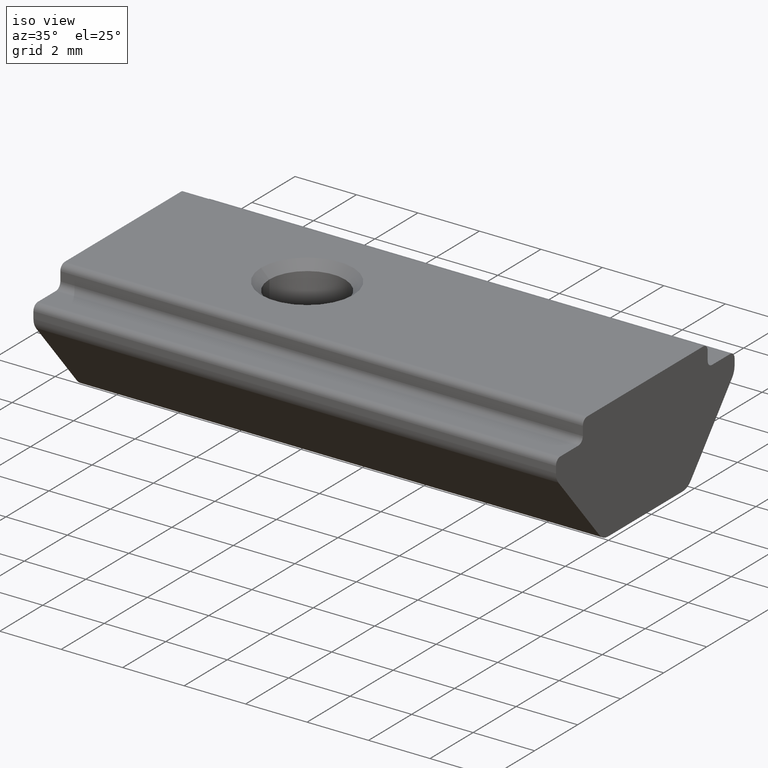
[diagram: clean part render]
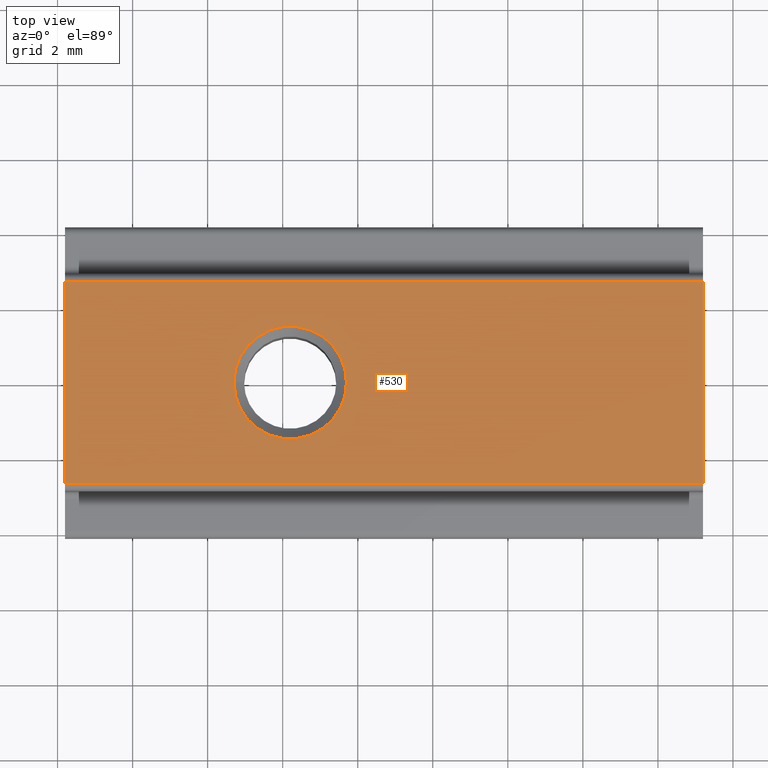
[diagram: tour spotlight — one face highlighted and labeled with its STEP entity id]
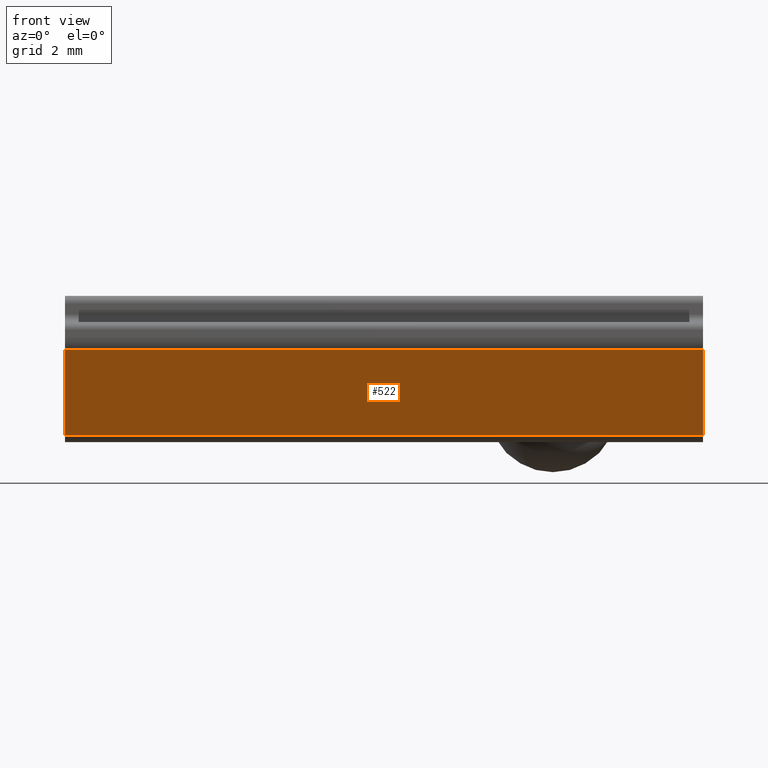
[diagram: tour spotlight — one face highlighted and labeled with its STEP entity id]
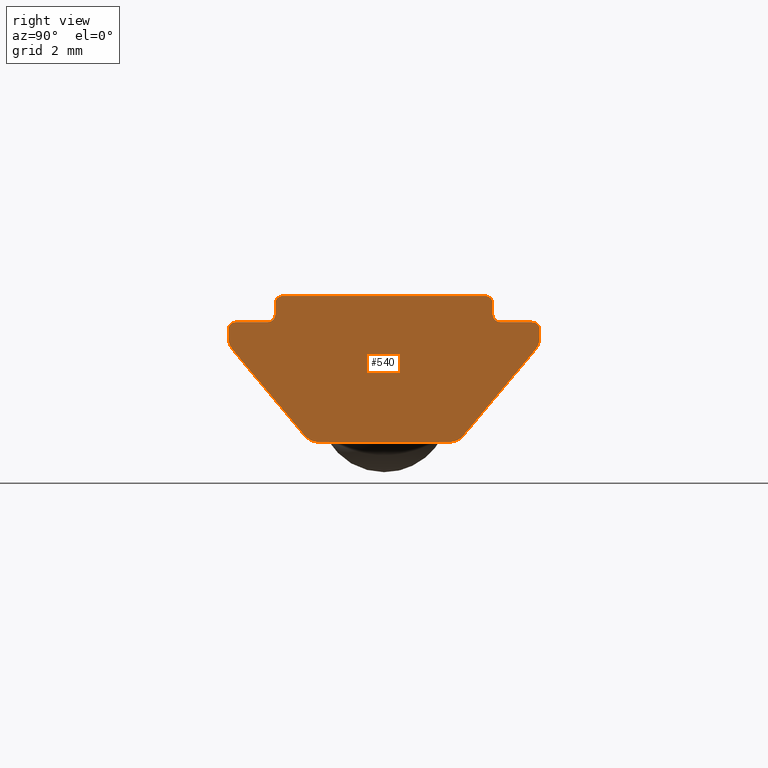
[diagram: tour spotlight — one face highlighted and labeled with its STEP entity id]
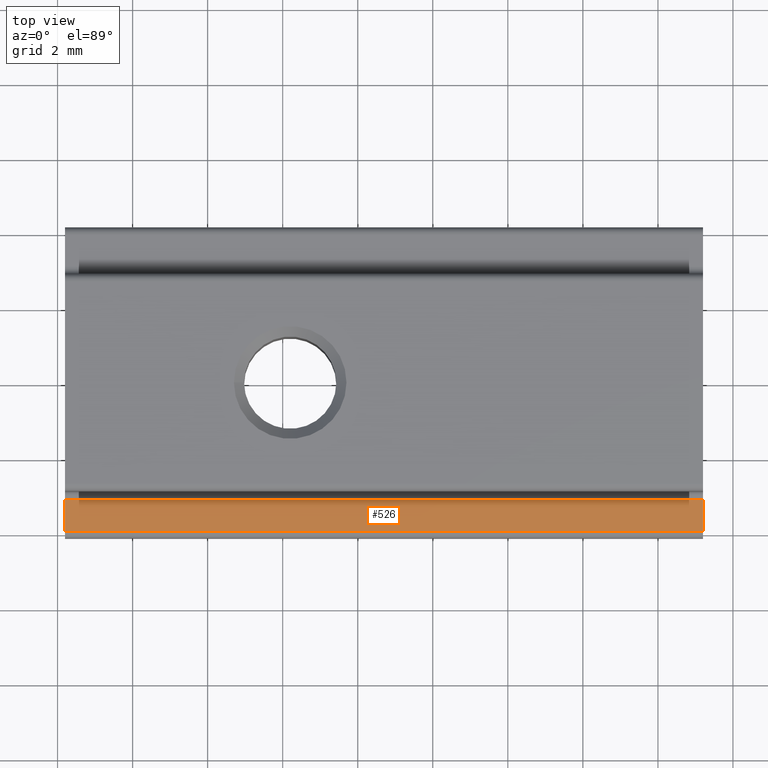
[diagram: tour spotlight — one face highlighted and labeled with its STEP entity id]
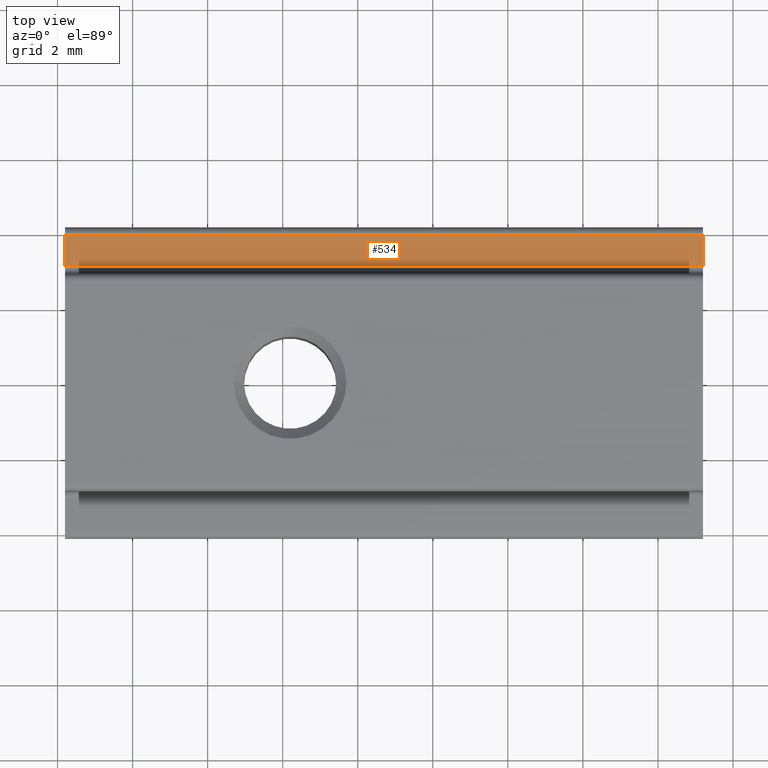
[diagram: tour spotlight — one face highlighted and labeled with its STEP entity id]
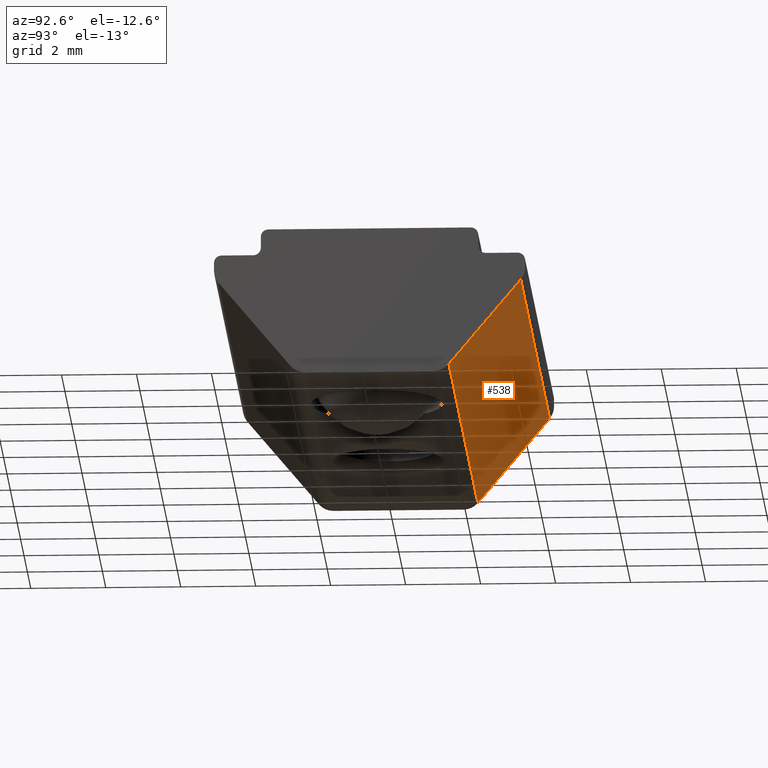
[diagram: tour spotlight — one face highlighted and labeled with its STEP entity id]
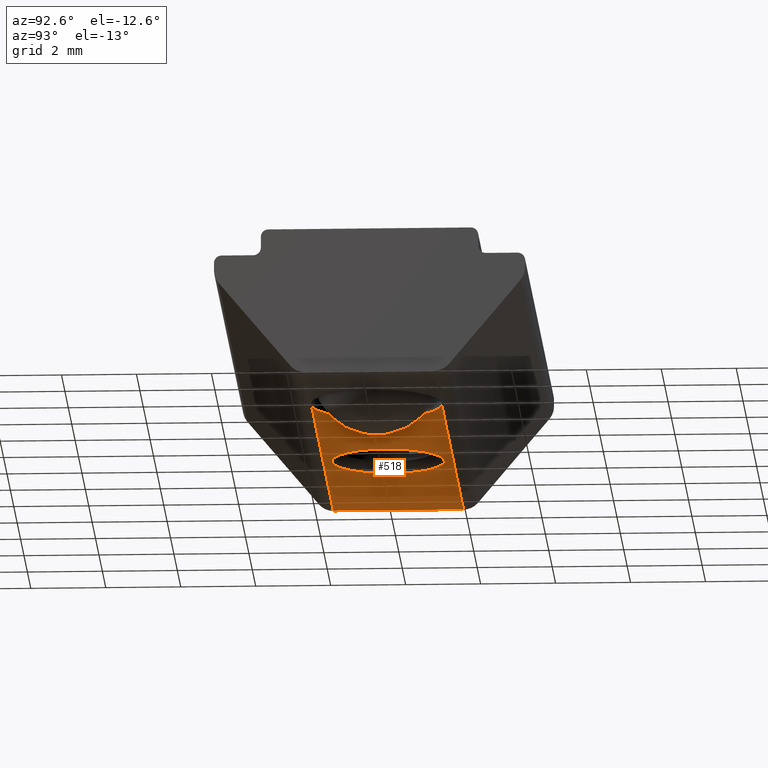
[diagram: tour spotlight — one face highlighted and labeled with its STEP entity id]
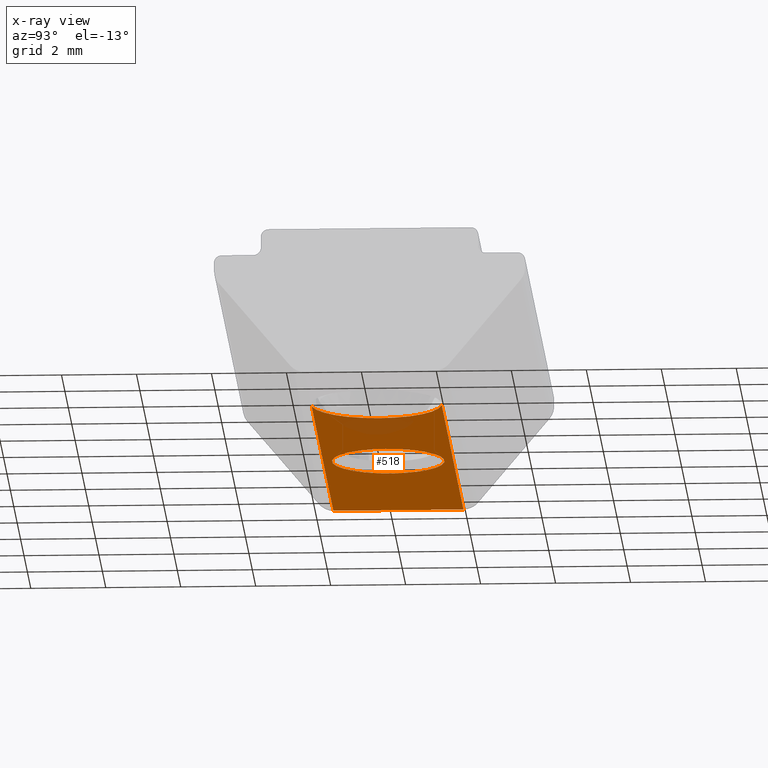
[diagram: x-ray of the same camera — body ghosted, this tour face saturated]
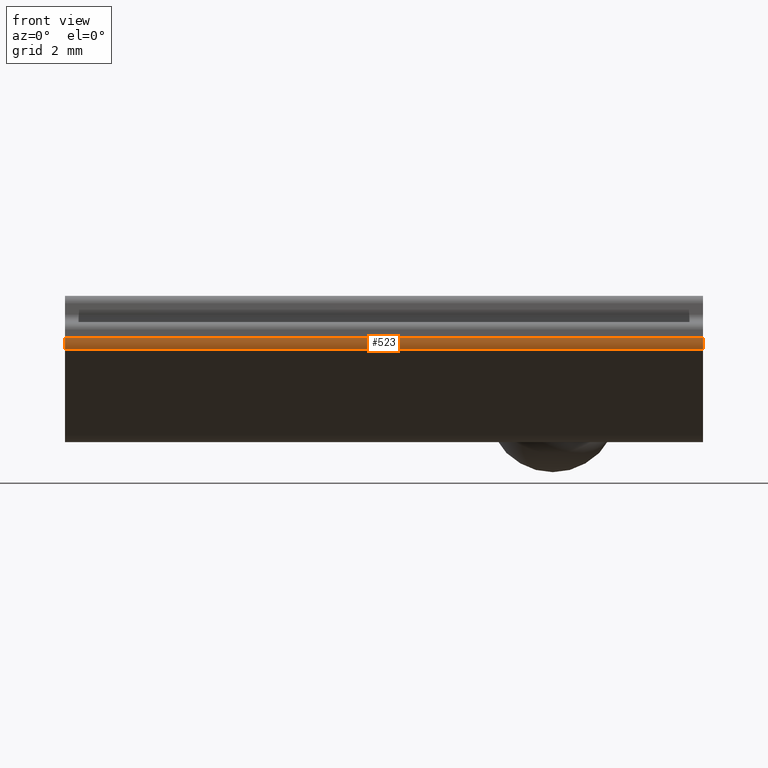
[diagram: tour spotlight — one face highlighted and labeled with its STEP entity id]
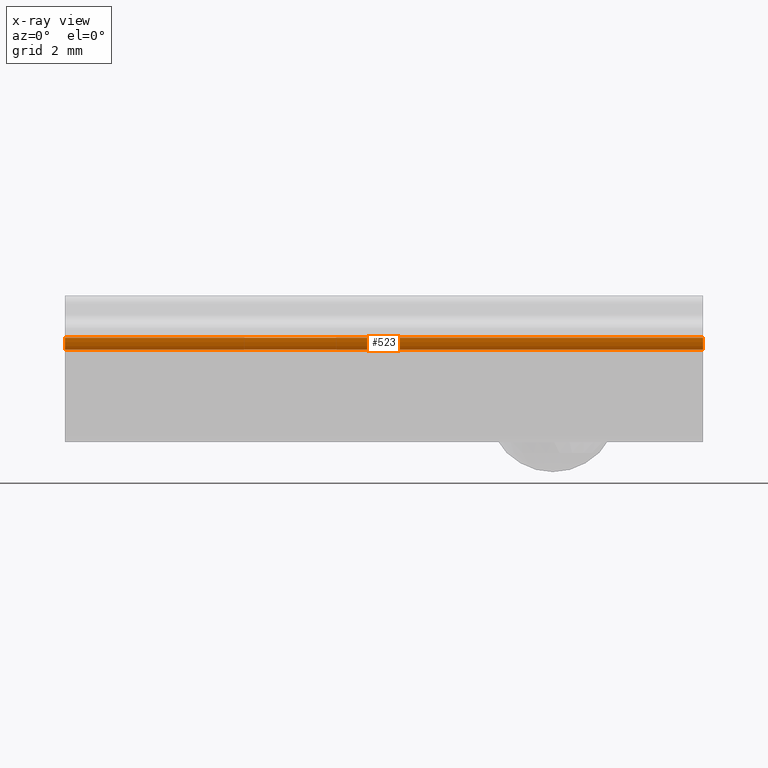
[diagram: x-ray of the same camera — body ghosted, this tour face saturated]
A machine part: a face-by-face anatomy tour. The part has 28 B-rep faces; the first image is the clean iso view, then the 8 largest visible faces are spotlighted one at a time (largest first), each with its STEP entity span.

Face 1 — top view, entity #530. In plain terms, the highlighted planar face has unit normal (0, 0, -1).
Definition (entity closure, byte-faithful):
#33=FACE_BOUND('',#76,.T.);
#46=FACE_OUTER_BOUND('',#75,.T.);
#75=EDGE_LOOP('',(#401,#402,#403,#404));
#76=EDGE_LOOP('',(#405));
#115=LINE('',#879,#161);
#116=LINE('',#883,#162);
#117=LINE('',#885,#163);
#118=LINE('',#886,#164);
#161=VECTOR('',#698,1000.);
#162=VECTOR('',#703,1000.);
#163=VECTOR('',#704,1000.);
#164=VECTOR('',#705,1000.);
#200=CIRCLE('',#589,1.5);
#243=VERTEX_POINT('',#876);
#244=VERTEX_POINT('',#878);
#245=VERTEX_POINT('',#882);
#246=VERTEX_POINT('',#884);
#247=VERTEX_POINT('',#887);
#308=EDGE_CURVE('',#244,#243,#115,.T.);
#310=EDGE_CURVE('',#243,#245,#116,.T.);
#311=EDGE_CURVE('',#246,#245,#117,.T.);
#312=EDGE_CURVE('',#244,#246,#118,.T.);
#313=EDGE_CURVE('',#247,#247,#200,.T.);
#401=ORIENTED_EDGE('',*,*,#310,.T.);
#402=ORIENTED_EDGE('',*,*,#311,.F.);
#403=ORIENTED_EDGE('',*,*,#312,.F.);
#404=ORIENTED_EDGE('',*,*,#308,.T.);
#405=ORIENTED_EDGE('',*,*,#313,.F.);
#511=PLANE('',#588);
#530=ADVANCED_FACE('',(#46,#33),#511,.F.);
#588=AXIS2_PLACEMENT_3D('',#881,#701,#702);
#589=AXIS2_PLACEMENT_3D('',#888,#706,#707);
#698=DIRECTION('',(1.,0.,2.22044604925031E-16));
#701=DIRECTION('center_axis',(2.22044604925031E-16,0.,-1.));
#702=DIRECTION('ref_axis',(-1.,0.,-2.22044604925031E-16));
#703=DIRECTION('',(0.,1.,0.));
#704=DIRECTION('',(1.,0.,2.22044604925031E-16));
#705=DIRECTION('',(0.,1.,0.));
#706=DIRECTION('center_axis',(-2.22044604925031E-16,0.,1.));
#707=DIRECTION('ref_axis',(1.,0.,2.22044604925031E-16));
#876=CARTESIAN_POINT('',(-0.799999999999997,-2.7,-3.80000000000001));
#878=CARTESIAN_POINT('',(-17.8,-2.7,-3.80000000000001));
#879=CARTESIAN_POINT('',(-17.8,-2.7,-3.80000000000001));
#881=CARTESIAN_POINT('Origin',(-17.8,-2.7,-3.80000000000001));
#882=CARTESIAN_POINT('',(-0.799999999999997,2.7,-3.80000000000001));
#883=CARTESIAN_POINT('',(-0.799999999999997,-2.7,-3.80000000000001));
#884=CARTESIAN_POINT('',(-17.8,2.7,-3.80000000000001));
#885=CARTESIAN_POINT('',(-17.8,2.7,-3.80000000000001));
#886=CARTESIAN_POINT('',(-17.8,-2.7,-3.80000000000001));
#887=CARTESIAN_POINT('',(-13.3,-1.83697019872103E-16,-3.80000000000001));
#888=CARTESIAN_POINT('Origin',(-11.8,0.,-3.80000000000001));

Face 2 — front view, entity #522. In plain terms, the highlighted planar face has unit normal (-0, 0.766, 0.6428).
Definition (entity closure, byte-faithful):
#38=FACE_OUTER_BOUND('',#67,.T.);
#67=EDGE_LOOP('',(#369,#370,#371,#372));
#96=LINE('',#813,#142);
#100=LINE('',#835,#146);
#101=LINE('',#837,#147);
#102=LINE('',#838,#148);
#142=VECTOR('',#637,1000.);
#146=VECTOR('',#655,1000.);
#147=VECTOR('',#656,1000.);
#148=VECTOR('',#657,1000.);
#223=VERTEX_POINT('',#810);
#224=VERTEX_POINT('',#812);
#229=VERTEX_POINT('',#834);
#230=VERTEX_POINT('',#836);
#277=EDGE_CURVE('',#224,#223,#96,.T.);
#286=EDGE_CURVE('',#223,#229,#100,.T.);
#287=EDGE_CURVE('',#230,#229,#101,.T.);
#288=EDGE_CURVE('',#224,#230,#102,.T.);
#369=ORIENTED_EDGE('',*,*,#286,.T.);
#370=ORIENTED_EDGE('',*,*,#287,.F.);
#371=ORIENTED_EDGE('',*,*,#288,.F.);
#372=ORIENTED_EDGE('',*,*,#277,.T.);
#507=PLANE('',#572);
#522=ADVANCED_FACE('',(#38),#507,.F.);
#572=AXIS2_PLACEMENT_3D('',#833,#653,#654);
#637=DIRECTION('',(1.,0.,2.22044604925031E-16));
#653=DIRECTION('center_axis',(-1.42727520843553E-16,0.766044443118978,0.64278760968654));
#654=DIRECTION('ref_axis',(1.70096035727369E-16,0.64278760968654,-0.766044443118978));
#655=DIRECTION('',(-1.70096035727369E-16,-0.64278760968654,0.766044443118978));
#656=DIRECTION('',(1.,0.,2.22044604925031E-16));
#657=DIRECTION('',(-1.70096035727369E-16,-0.64278760968654,0.766044443118978));
#810=CARTESIAN_POINT('',(-0.799999999999996,-2.11820935142106,-7.52139380484328));
#812=CARTESIAN_POINT('',(-17.8,-2.11820935142106,-7.52139380484328));
#813=CARTESIAN_POINT('',(-17.8,-2.11820935142106,-7.52139380484328));
#833=CARTESIAN_POINT('Origin',(-17.8,-2.11820935142106,-7.52139380484328));
#834=CARTESIAN_POINT('',(-0.799999999999996,-4.03302222155949,-5.23940868771018));
#835=CARTESIAN_POINT('',(-0.799999999999996,-2.11820935142106,-7.52139380484328));
#836=CARTESIAN_POINT('',(-17.8,-4.03302222155949,-5.23940868771018));
#837=CARTESIAN_POINT('',(-17.8,-4.03302222155949,-5.23940868771018));
#838=CARTESIAN_POINT('',(-17.8,-2.11820935142106,-7.52139380484328));

Face 3 — right view, entity #540. In plain terms, the highlighted planar face has unit normal (-1, 0, -0).
Definition (entity closure, byte-faithful):
#56=FACE_OUTER_BOUND('',#86,.T.);
#86=EDGE_LOOP('',(#458,#459,#460,#461,#462,#463,#464,#465,#466,#467,#468,
#469,#470,#471,#472,#473,#474,#475,#476,#477));
#99=LINE('',#832,#145);
#100=LINE('',#835,#146);
#104=LINE('',#847,#150);
#108=LINE('',#859,#154);
#112=LINE('',#871,#158);
#116=LINE('',#883,#162);
#120=LINE('',#897,#166);
#124=LINE('',#909,#170);
#128=LINE('',#921,#174);
#132=LINE('',#932,#178);
#145=VECTOR('',#652,1000.);
#146=VECTOR('',#655,1000.);
#150=VECTOR('',#667,1000.);
#154=VECTOR('',#679,1000.);
#158=VECTOR('',#691,1000.);
#162=VECTOR('',#703,1000.);
#166=VECTOR('',#717,1000.);
#170=VECTOR('',#729,1000.);
#174=VECTOR('',#741,1000.);
#178=VECTOR('',#753,1000.);
#187=CIRCLE('',#565,0.499999999999999);
#190=CIRCLE('',#569,0.499999999999998);
#192=CIRCLE('',#574,0.499999999999989);
#194=CIRCLE('',#578,0.2);
#196=CIRCLE('',#582,0.200000000000001);
#198=CIRCLE('',#586,0.2);
#201=CIRCLE('',#591,0.2);
#203=CIRCLE('',#595,0.200000000000001);
#205=CIRCLE('',#599,0.199999999999999);
#207=CIRCLE('',#603,0.499999999999994);
#222=VERTEX_POINT('',#808);
#223=VERTEX_POINT('',#810);
#227=VERTEX_POINT('',#825);
#228=VERTEX_POINT('',#827);
#229=VERTEX_POINT('',#834);
#231=VERTEX_POINT('',#840);
#233=VERTEX_POINT('',#846);
#235=VERTEX_POINT('',#852);
#237=VERTEX_POINT('',#858);
#239=VERTEX_POINT('',#864);
#241=VERTEX_POINT('',#870);
#243=VERTEX_POINT('',#876);
#245=VERTEX_POINT('',#882);
#248=VERTEX_POINT('',#890);
#250=VERTEX_POINT('',#896);
#252=VERTEX_POINT('',#902);
#254=VERTEX_POINT('',#908);
#256=VERTEX_POINT('',#914);
#258=VERTEX_POINT('',#920);
#260=VERTEX_POINT('',#926);
#276=EDGE_CURVE('',#222,#223,#187,.T.);
#282=EDGE_CURVE('',#227,#228,#190,.T.);
#285=EDGE_CURVE('',#228,#222,#99,.T.);
#286=EDGE_CURVE('',#223,#229,#100,.T.);
#289=EDGE_CURVE('',#229,#231,#192,.T.);
#292=EDGE_CURVE('',#231,#233,#104,.T.);
#295=EDGE_CURVE('',#233,#235,#194,.T.);
#298=EDGE_CURVE('',#235,#237,#108,.T.);
#301=EDGE_CURVE('',#239,#237,#196,.T.);
#304=EDGE_CURVE('',#239,#241,#112,.T.);
#307=EDGE_CURVE('',#241,#243,#198,.T.);
#310=EDGE_CURVE('',#243,#245,#116,.T.);
#314=EDGE_CURVE('',#245,#248,#201,.T.);
#317=EDGE_CURVE('',#248,#250,#120,.T.);
#320=EDGE_CURVE('',#252,#250,#203,.T.);
#323=EDGE_CURVE('',#252,#254,#124,.T.);
#326=EDGE_CURVE('',#254,#256,#205,.T.);
#329=EDGE_CURVE('',#256,#258,#128,.T.);
#332=EDGE_CURVE('',#258,#260,#207,.T.);
#335=EDGE_CURVE('',#260,#227,#132,.T.);
#458=ORIENTED_EDGE('',*,*,#285,.F.);
#459=ORIENTED_EDGE('',*,*,#282,.F.);
#460=ORIENTED_EDGE('',*,*,#335,.F.);
#461=ORIENTED_EDGE('',*,*,#332,.F.);
#462=ORIENTED_EDGE('',*,*,#329,.F.);
#463=ORIENTED_EDGE('',*,*,#326,.F.);
#464=ORIENTED_EDGE('',*,*,#323,.F.);
#465=ORIENTED_EDGE('',*,*,#320,.T.);
#466=ORIENTED_EDGE('',*,*,#317,.F.);
#467=ORIENTED_EDGE('',*,*,#314,.F.);
#468=ORIENTED_EDGE('',*,*,#310,.F.);
#469=ORIENTED_EDGE('',*,*,#307,.F.);
#470=ORIENTED_EDGE('',*,*,#304,.F.);
#471=ORIENTED_EDGE('',*,*,#301,.T.);
#472=ORIENTED_EDGE('',*,*,#298,.F.);
#473=ORIENTED_EDGE('',*,*,#295,.F.);
#474=ORIENTED_EDGE('',*,*,#292,.F.);
#475=ORIENTED_EDGE('',*,*,#289,.F.);
#476=ORIENTED_EDGE('',*,*,#286,.F.);
#477=ORIENTED_EDGE('',*,*,#276,.F.);
#517=PLANE('',#607);
#540=ADVANCED_FACE('',(#56),#517,.F.);
#565=AXIS2_PLACEMENT_3D('',#811,#635,#636);
#569=AXIS2_PLACEMENT_3D('',#828,#645,#646);
#574=AXIS2_PLACEMENT_3D('',#841,#660,#661);
#578=AXIS2_PLACEMENT_3D('',#853,#672,#673);
#582=AXIS2_PLACEMENT_3D('',#865,#684,#685);
#586=AXIS2_PLACEMENT_3D('',#877,#696,#697);
#591=AXIS2_PLACEMENT_3D('',#891,#710,#711);
#595=AXIS2_PLACEMENT_3D('',#903,#722,#723);
#599=AXIS2_PLACEMENT_3D('',#915,#734,#735);
#603=AXIS2_PLACEMENT_3D('',#927,#746,#747);
#607=AXIS2_PLACEMENT_3D('',#935,#757,#758);
#635=DIRECTION('center_axis',(-1.,0.,-2.22044604925031E-16));
#636=DIRECTION('ref_axis',(-2.22044604925031E-16,0.,1.));
#645=DIRECTION('center_axis',(-1.,0.,-2.22044604925031E-16));
#646=DIRECTION('ref_axis',(-2.22044604925031E-16,0.,1.));
#652=DIRECTION('',(0.,-1.,0.));
#655=DIRECTION('',(-1.70096035727369E-16,-0.64278760968654,0.766044443118978));
#660=DIRECTION('center_axis',(-1.,0.,-2.22044604925031E-16));
#661=DIRECTION('ref_axis',(-2.22044604925031E-16,0.,1.));
#667=DIRECTION('',(-2.22044604925031E-16,0.,1.));
#672=DIRECTION('center_axis',(-1.,0.,-2.22044604925031E-16));
#673=DIRECTION('ref_axis',(-2.22044604925031E-16,0.,1.));
#679=DIRECTION('',(0.,1.,0.));
#684=DIRECTION('center_axis',(-1.,0.,-2.22044604925031E-16));
#685=DIRECTION('ref_axis',(-2.22044604925031E-16,0.,1.));
#691=DIRECTION('',(-2.22044604925031E-16,0.,1.));
#696=DIRECTION('center_axis',(-1.,0.,-2.22044604925031E-16));
#697=DIRECTION('ref_axis',(-2.22044604925031E-16,0.,1.));
#703=DIRECTION('',(0.,1.,0.));
#710=DIRECTION('center_axis',(-1.,0.,-2.22044604925031E-16));
#711=DIRECTION('ref_axis',(-2.22044604925031E-16,0.,1.));
#717=DIRECTION('',(2.22044604925031E-16,0.,-1.));
#722=DIRECTION('center_axis',(-1.,0.,-2.22044604925031E-16));
#723=DIRECTION('ref_axis',(-2.22044604925031E-16,0.,1.));
#729=DIRECTION('',(0.,1.,0.));
#734=DIRECTION('center_axis',(-1.,0.,-2.22044604925031E-16));
#735=DIRECTION('ref_axis',(-2.22044604925031E-16,0.,1.));
#741=DIRECTION('',(2.22044604925031E-16,0.,-1.));
#746=DIRECTION('center_axis',(-1.,0.,-2.22044604925031E-16));
#747=DIRECTION('ref_axis',(-2.22044604925031E-16,0.,1.));
#753=DIRECTION('',(1.70096035727369E-16,-0.642787609686539,-0.766044443118978));
#757=DIRECTION('center_axis',(-1.,0.,-2.22044604925031E-16));
#758=DIRECTION('ref_axis',(-2.22044604925031E-16,0.,1.));
#808=CARTESIAN_POINT('',(-0.799999999999996,-1.73518712986157,-7.70000000000001));
#810=CARTESIAN_POINT('',(-0.799999999999996,-2.11820935142106,-7.52139380484328));
#811=CARTESIAN_POINT('Origin',(-0.799999999999996,-1.73518712986157,-7.20000000000001));
#825=CARTESIAN_POINT('',(-0.799999999999996,2.11820935142106,-7.52139380484328));
#827=CARTESIAN_POINT('',(-0.799999999999996,1.73518712986157,-7.70000000000001));
#828=CARTESIAN_POINT('Origin',(-0.799999999999996,1.73518712986157,-7.20000000000001));
#832=CARTESIAN_POINT('',(-0.799999999999996,1.73518712986157,-7.70000000000001));
#834=CARTESIAN_POINT('',(-0.799999999999996,-4.03302222155949,-5.23940868771018));
#835=CARTESIAN_POINT('',(-0.799999999999996,-2.11820935142106,-7.52139380484328));
#840=CARTESIAN_POINT('',(-0.799999999999997,-4.15,-4.91801488286691));
#841=CARTESIAN_POINT('Origin',(-0.799999999999997,-3.65000000000001,-4.91801488286691));
#846=CARTESIAN_POINT('',(-0.799999999999997,-4.15,-4.70000000000001));
#847=CARTESIAN_POINT('',(-0.799999999999997,-4.15,-4.91801488286691));
#852=CARTESIAN_POINT('',(-0.799999999999997,-3.95,-4.50000000000001));
#853=CARTESIAN_POINT('Origin',(-0.799999999999997,-3.95,-4.70000000000001));
#858=CARTESIAN_POINT('',(-0.799999999999997,-3.1,-4.50000000000001));
#859=CARTESIAN_POINT('',(-0.799999999999997,-3.95,-4.50000000000001));
#864=CARTESIAN_POINT('',(-0.799999999999997,-2.9,-4.30000000000001));
#865=CARTESIAN_POINT('Origin',(-0.799999999999997,-3.1,-4.30000000000001));
#870=CARTESIAN_POINT('',(-0.799999999999997,-2.9,-4.00000000000001));
#871=CARTESIAN_POINT('',(-0.799999999999997,-2.9,-4.30000000000001));
#876=CARTESIAN_POINT('',(-0.799999999999997,-2.7,-3.80000000000001));
#877=CARTESIAN_POINT('Origin',(-0.799999999999997,-2.7,-4.00000000000001));
#882=CARTESIAN_POINT('',(-0.799999999999997,2.7,-3.80000000000001));
#883=CARTESIAN_POINT('',(-0.799999999999997,-2.7,-3.80000000000001));
#890=CARTESIAN_POINT('',(-0.799999999999997,2.9,-4.00000000000001));
#891=CARTESIAN_POINT('Origin',(-0.799999999999997,2.7,-4.00000000000001));
#896=CARTESIAN_POINT('',(-0.799999999999997,2.9,-4.30000000000001));
#897=CARTESIAN_POINT('',(-0.799999999999997,2.9,-4.00000000000001));
#902=CARTESIAN_POINT('',(-0.799999999999997,3.1,-4.50000000000001));
#903=CARTESIAN_POINT('Origin',(-0.799999999999997,3.1,-4.30000000000001));
#908=CARTESIAN_POINT('',(-0.799999999999997,3.95,-4.50000000000001));
#909=CARTESIAN_POINT('',(-0.799999999999997,3.1,-4.50000000000001));
#914=CARTESIAN_POINT('',(-0.799999999999997,4.15,-4.70000000000001));
#915=CARTESIAN_POINT('Origin',(-0.799999999999997,3.95,-4.70000000000001));
#920=CARTESIAN_POINT('',(-0.799999999999997,4.15,-4.91801488286691));
#921=CARTESIAN_POINT('',(-0.799999999999997,4.15,-4.70000000000001));
#926=CARTESIAN_POINT('',(-0.799999999999996,4.03302222155949,-5.23940868771018));
#927=CARTESIAN_POINT('Origin',(-0.799999999999997,3.65000000000001,-4.91801488286691));
#932=CARTESIAN_POINT('',(-0.799999999999996,4.03302222155949,-5.23940868771018));
#935=CARTESIAN_POINT('Origin',(-0.799999999999996,-1.73518712986157,-7.20000000000001));

Face 4 — top view, entity #526. In plain terms, the highlighted planar face has unit normal (0, 0, -1).
Definition (entity closure, byte-faithful):
#42=FACE_OUTER_BOUND('',#71,.T.);
#71=EDGE_LOOP('',(#385,#386,#387,#388));
#107=LINE('',#855,#153);
#108=LINE('',#859,#154);
#109=LINE('',#861,#155);
#110=LINE('',#862,#156);
#153=VECTOR('',#674,1000.);
#154=VECTOR('',#679,1000.);
#155=VECTOR('',#680,1000.);
#156=VECTOR('',#681,1000.);
#235=VERTEX_POINT('',#852);
#236=VERTEX_POINT('',#854);
#237=VERTEX_POINT('',#858);
#238=VERTEX_POINT('',#860);
#296=EDGE_CURVE('',#236,#235,#107,.T.);
#298=EDGE_CURVE('',#235,#237,#108,.T.);
#299=EDGE_CURVE('',#238,#237,#109,.T.);
#300=EDGE_CURVE('',#236,#238,#110,.T.);
#385=ORIENTED_EDGE('',*,*,#298,.T.);
#386=ORIENTED_EDGE('',*,*,#299,.F.);
#387=ORIENTED_EDGE('',*,*,#300,.F.);
#388=ORIENTED_EDGE('',*,*,#296,.T.);
#509=PLANE('',#580);
#526=ADVANCED_FACE('',(#42),#509,.F.);
#580=AXIS2_PLACEMENT_3D('',#857,#677,#678);
#674=DIRECTION('',(1.,0.,2.22044604925031E-16));
#677=DIRECTION('center_axis',(2.22044604925031E-16,0.,-1.));
#678=DIRECTION('ref_axis',(-1.,0.,-2.22044604925031E-16));
#679=DIRECTION('',(0.,1.,0.));
#680=DIRECTION('',(1.,0.,2.22044604925031E-16));
#681=DIRECTION('',(0.,1.,0.));
#852=CARTESIAN_POINT('',(-0.799999999999997,-3.95,-4.50000000000001));
#854=CARTESIAN_POINT('',(-17.8,-3.95,-4.50000000000001));
#855=CARTESIAN_POINT('',(-17.8,-3.95,-4.50000000000001));
#857=CARTESIAN_POINT('Origin',(-17.8,-3.95,-4.50000000000001));
#858=CARTESIAN_POINT('',(-0.799999999999997,-3.1,-4.50000000000001));
#859=CARTESIAN_POINT('',(-0.799999999999997,-3.95,-4.50000000000001));
#860=CARTESIAN_POINT('',(-17.8,-3.1,-4.50000000000001));
#861=CARTESIAN_POINT('',(-17.8,-3.1,-4.50000000000001));
#862=CARTESIAN_POINT('',(-17.8,-3.95,-4.50000000000001));

Face 5 — top view, entity #534. In plain terms, the highlighted planar face has unit normal (0, 0, -1).
Definition (entity closure, byte-faithful):
#50=FACE_OUTER_BOUND('',#80,.T.);
#80=EDGE_LOOP('',(#418,#419,#420,#421));
#123=LINE('',#905,#169);
#124=LINE('',#909,#170);
#125=LINE('',#911,#171);
#126=LINE('',#912,#172);
#169=VECTOR('',#724,1000.);
#170=VECTOR('',#729,1000.);
#171=VECTOR('',#730,1000.);
#172=VECTOR('',#731,1000.);
#252=VERTEX_POINT('',#902);
#253=VERTEX_POINT('',#904);
#254=VERTEX_POINT('',#908);
#255=VERTEX_POINT('',#910);
#321=EDGE_CURVE('',#253,#252,#123,.T.);
#323=EDGE_CURVE('',#252,#254,#124,.T.);
#324=EDGE_CURVE('',#255,#254,#125,.T.);
#325=EDGE_CURVE('',#253,#255,#126,.T.);
#418=ORIENTED_EDGE('',*,*,#323,.T.);
#419=ORIENTED_EDGE('',*,*,#324,.F.);
#420=ORIENTED_EDGE('',*,*,#325,.F.);
#421=ORIENTED_EDGE('',*,*,#321,.T.);
#513=PLANE('',#597);
#534=ADVANCED_FACE('',(#50),#513,.F.);
#597=AXIS2_PLACEMENT_3D('',#907,#727,#728);
#724=DIRECTION('',(1.,0.,2.22044604925031E-16));
#727=DIRECTION('center_axis',(2.22044604925031E-16,0.,-1.));
#728=DIRECTION('ref_axis',(-1.,0.,-2.22044604925031E-16));
#729=DIRECTION('',(0.,1.,0.));
#730=DIRECTION('',(1.,0.,2.22044604925031E-16));
#731=DIRECTION('',(0.,1.,0.));
#902=CARTESIAN_POINT('',(-0.799999999999997,3.1,-4.50000000000001));
#904=CARTESIAN_POINT('',(-17.8,3.1,-4.50000000000001));
#905=CARTESIAN_POINT('',(-17.8,3.1,-4.50000000000001));
#907=CARTESIAN_POINT('Origin',(-17.8,3.1,-4.50000000000001));
#908=CARTESIAN_POINT('',(-0.799999999999997,3.95,-4.50000000000001));
#909=CARTESIAN_POINT('',(-0.799999999999997,3.1,-4.50000000000001));
#910=CARTESIAN_POINT('',(-17.8,3.95,-4.50000000000001));
#911=CARTESIAN_POINT('',(-17.8,3.95,-4.50000000000001));
#912=CARTESIAN_POINT('',(-17.8,3.1,-4.50000000000001));

Face 6 — auxiliary view, entity #538. In plain terms, the highlighted planar face has unit normal (-0, -0.766, 0.6428).
Definition (entity closure, byte-faithful):
#54=FACE_OUTER_BOUND('',#84,.T.);
#84=EDGE_LOOP('',(#434,#435,#436,#437));
#97=LINE('',#826,#143);
#131=LINE('',#929,#177);
#132=LINE('',#932,#178);
#133=LINE('',#933,#179);
#143=VECTOR('',#644,1000.);
#177=VECTOR('',#748,1000.);
#178=VECTOR('',#753,1000.);
#179=VECTOR('',#754,1000.);
#226=VERTEX_POINT('',#823);
#227=VERTEX_POINT('',#825);
#260=VERTEX_POINT('',#926);
#261=VERTEX_POINT('',#928);
#281=EDGE_CURVE('',#226,#227,#97,.T.);
#333=EDGE_CURVE('',#261,#260,#131,.T.);
#335=EDGE_CURVE('',#260,#227,#132,.T.);
#336=EDGE_CURVE('',#261,#226,#133,.T.);
#434=ORIENTED_EDGE('',*,*,#335,.T.);
#435=ORIENTED_EDGE('',*,*,#281,.F.);
#436=ORIENTED_EDGE('',*,*,#336,.F.);
#437=ORIENTED_EDGE('',*,*,#333,.T.);
#515=PLANE('',#605);
#538=ADVANCED_FACE('',(#54),#515,.F.);
#605=AXIS2_PLACEMENT_3D('',#931,#751,#752);
#644=DIRECTION('',(1.,0.,2.22044604925031E-16));
#748=DIRECTION('',(1.,0.,2.22044604925031E-16));
#751=DIRECTION('center_axis',(-1.42727520843553E-16,-0.766044443118978,
0.64278760968654));
#752=DIRECTION('ref_axis',(-1.70096035727369E-16,0.64278760968654,0.766044443118978));
#753=DIRECTION('',(1.70096035727369E-16,-0.642787609686539,-0.766044443118978));
#754=DIRECTION('',(1.70096035727369E-16,-0.642787609686539,-0.766044443118978));
#823=CARTESIAN_POINT('',(-17.8,2.11820935142106,-7.52139380484328));
#825=CARTESIAN_POINT('',(-0.799999999999996,2.11820935142106,-7.52139380484328));
#826=CARTESIAN_POINT('',(-17.8,2.11820935142106,-7.52139380484328));
#926=CARTESIAN_POINT('',(-0.799999999999996,4.03302222155949,-5.23940868771018));
#928=CARTESIAN_POINT('',(-17.8,4.03302222155949,-5.23940868771018));
#929=CARTESIAN_POINT('',(-17.8,4.03302222155949,-5.23940868771018));
#931=CARTESIAN_POINT('Origin',(-17.8,4.03302222155949,-5.23940868771018));
#932=CARTESIAN_POINT('',(-0.799999999999996,4.03302222155949,-5.23940868771018));
#933=CARTESIAN_POINT('',(-17.8,4.03302222155949,-5.23940868771018));

Face 7 — auxiliary view, entity #518. An x-ray twin of the same camera follows (body ghosted, this face saturated) — the face is partly hidden behind the body. In plain terms, the highlighted planar face has unit normal (-0, 0, 1).
Definition (entity closure, byte-faithful):
#32=FACE_BOUND('',#63,.T.);
#34=FACE_OUTER_BOUND('',#62,.T.);
#62=EDGE_LOOP('',(#347,#348,#349,#350,#351));
#63=EDGE_LOOP('',(#352));
#92=LINE('',#793,#138);
#93=LINE('',#795,#139);
#94=LINE('',#796,#140);
#138=VECTOR('',#627,1000.);
#139=VECTOR('',#628,1000.);
#140=VECTOR('',#629,1000.);
#184=CIRCLE('',#561,1.75);
#185=CIRCLE('',#562,1.75);
#186=CIRCLE('',#563,1.5);
#215=VERTEX_POINT('',#787);
#216=VERTEX_POINT('',#788);
#217=VERTEX_POINT('',#790);
#218=VERTEX_POINT('',#792);
#219=VERTEX_POINT('',#794);
#220=VERTEX_POINT('',#797);
#268=EDGE_CURVE('',#215,#216,#184,.T.);
#269=EDGE_CURVE('',#216,#217,#185,.T.);
#270=EDGE_CURVE('',#218,#217,#92,.T.);
#271=EDGE_CURVE('',#219,#218,#93,.T.);
#272=EDGE_CURVE('',#219,#215,#94,.T.);
#273=EDGE_CURVE('',#220,#220,#186,.T.);
#347=ORIENTED_EDGE('',*,*,#268,.T.);
#348=ORIENTED_EDGE('',*,*,#269,.T.);
#349=ORIENTED_EDGE('',*,*,#270,.F.);
#350=ORIENTED_EDGE('',*,*,#271,.F.);
#351=ORIENTED_EDGE('',*,*,#272,.T.);
#352=ORIENTED_EDGE('',*,*,#273,.T.);
#505=PLANE('',#560);
#518=ADVANCED_FACE('',(#34,#32),#505,.F.);
#560=AXIS2_PLACEMENT_3D('',#786,#621,#622);
#561=AXIS2_PLACEMENT_3D('',#789,#623,#624);
#562=AXIS2_PLACEMENT_3D('',#791,#625,#626);
#563=AXIS2_PLACEMENT_3D('',#798,#630,#631);
#621=DIRECTION('center_axis',(-2.22044604925031E-16,0.,1.));
#622=DIRECTION('ref_axis',(1.,0.,2.22044604925031E-16));
#623=DIRECTION('center_axis',(-2.22044604925031E-16,0.,1.));
#624=DIRECTION('ref_axis',(1.,0.,2.22044604925031E-16));
#625=DIRECTION('center_axis',(-2.22044604925031E-16,0.,1.));
#626=DIRECTION('ref_axis',(1.,0.,2.22044604925031E-16));
#627=DIRECTION('',(1.,0.,2.22044604925031E-16));
#628=DIRECTION('',(0.,-1.,0.));
#629=DIRECTION('',(1.,0.,2.22044604925031E-16));
#630=DIRECTION('center_axis',(-2.22044604925031E-16,0.,1.));
#631=DIRECTION('ref_axis',(1.,0.,2.22044604925031E-16));
#786=CARTESIAN_POINT('Origin',(-17.8,1.73518712986157,-7.70000000000001));
#787=CARTESIAN_POINT('',(-5.02721272931497,1.73518712986157,-7.70000000000001));
#788=CARTESIAN_POINT('',(-6.55,-2.14313189850787E-16,-7.70000000000001));
#789=CARTESIAN_POINT('Origin',(-4.8,0.,-7.70000000000001));
#790=CARTESIAN_POINT('',(-5.02721272931497,-1.73518712986157,-7.70000000000001));
#791=CARTESIAN_POINT('Origin',(-4.8,0.,-7.70000000000001));
#792=CARTESIAN_POINT('',(-17.8,-1.73518712986157,-7.70000000000001));
#793=CARTESIAN_POINT('',(-17.8,-1.73518712986157,-7.70000000000001));
#794=CARTESIAN_POINT('',(-17.8,1.73518712986157,-7.70000000000001));
#795=CARTESIAN_POINT('',(-17.8,1.73518712986157,-7.70000000000001));
#796=CARTESIAN_POINT('',(-17.8,1.73518712986157,-7.70000000000001));
#797=CARTESIAN_POINT('',(-10.3,0.,-7.70000000000001));
#798=CARTESIAN_POINT('Origin',(-11.8,0.,-7.70000000000001));

Face 8 — front view, entity #523. An x-ray twin of the same camera follows (body ghosted, this face saturated) — the face is partly hidden behind the body. In plain terms, the highlighted cylindrical surface (edge-blend (fillet) strip) has radius 0.5 mm, axis along (1, 0, 0).
Definition (entity closure, byte-faithful):
#22=CYLINDRICAL_SURFACE('',#573,0.499999999999989);
#39=FACE_OUTER_BOUND('',#68,.T.);
#68=EDGE_LOOP('',(#373,#374,#375,#376));
#101=LINE('',#837,#147);
#103=LINE('',#843,#149);
#147=VECTOR('',#656,1000.);
#149=VECTOR('',#662,1000.);
#192=CIRCLE('',#574,0.499999999999989);
#193=CIRCLE('',#575,0.499999999999989);
#229=VERTEX_POINT('',#834);
#230=VERTEX_POINT('',#836);
#231=VERTEX_POINT('',#840);
#232=VERTEX_POINT('',#842);
#287=EDGE_CURVE('',#230,#229,#101,.T.);
#289=EDGE_CURVE('',#229,#231,#192,.T.);
#290=EDGE_CURVE('',#232,#231,#103,.T.);
#291=EDGE_CURVE('',#230,#232,#193,.T.);
#373=ORIENTED_EDGE('',*,*,#289,.T.);
#374=ORIENTED_EDGE('',*,*,#290,.F.);
#375=ORIENTED_EDGE('',*,*,#291,.F.);
#376=ORIENTED_EDGE('',*,*,#287,.T.);
#523=ADVANCED_FACE('',(#39),#22,.T.);
#573=AXIS2_PLACEMENT_3D('',#839,#658,#659);
#574=AXIS2_PLACEMENT_3D('',#841,#660,#661);
#575=AXIS2_PLACEMENT_3D('',#844,#663,#664);
#656=DIRECTION('',(1.,0.,2.22044604925031E-16));
#658=DIRECTION('center_axis',(1.,0.,2.22044604925031E-16));
#659=DIRECTION('ref_axis',(2.22044604925031E-16,0.,-1.));
#660=DIRECTION('center_axis',(-1.,0.,-2.22044604925031E-16));
#661=DIRECTION('ref_axis',(-2.22044604925031E-16,0.,1.));
#662=DIRECTION('',(1.,0.,2.22044604925031E-16));
#663=DIRECTION('center_axis',(-1.,0.,-2.22044604925031E-16));
#664=DIRECTION('ref_axis',(-2.22044604925031E-16,0.,1.));
#834=CARTESIAN_POINT('',(-0.799999999999996,-4.03302222155949,-5.23940868771018));
#836=CARTESIAN_POINT('',(-17.8,-4.03302222155949,-5.23940868771018));
#837=CARTESIAN_POINT('',(-17.8,-4.03302222155949,-5.23940868771018));
#839=CARTESIAN_POINT('Origin',(-17.8,-3.65000000000001,-4.91801488286691));
#840=CARTESIAN_POINT('',(-0.799999999999997,-4.15,-4.91801488286691));
#841=CARTESIAN_POINT('Origin',(-0.799999999999997,-3.65000000000001,-4.91801488286691));
#842=CARTESIAN_POINT('',(-17.8,-4.15,-4.91801488286691));
#843=CARTESIAN_POINT('',(-17.8,-4.15,-4.91801488286691));
#844=CARTESIAN_POINT('Origin',(-17.8,-3.65000000000001,-4.91801488286691));